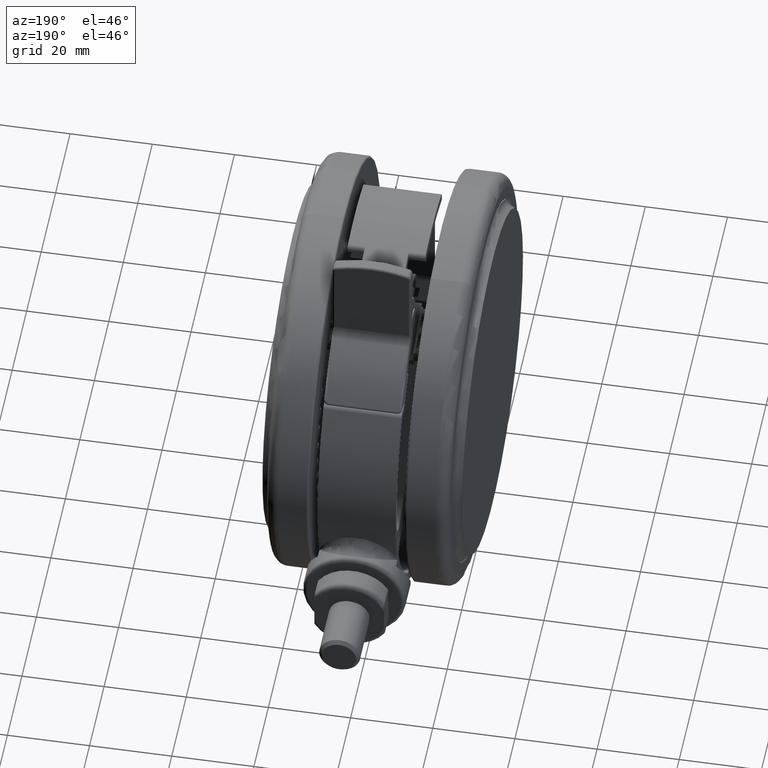
[diagram: clean part render]
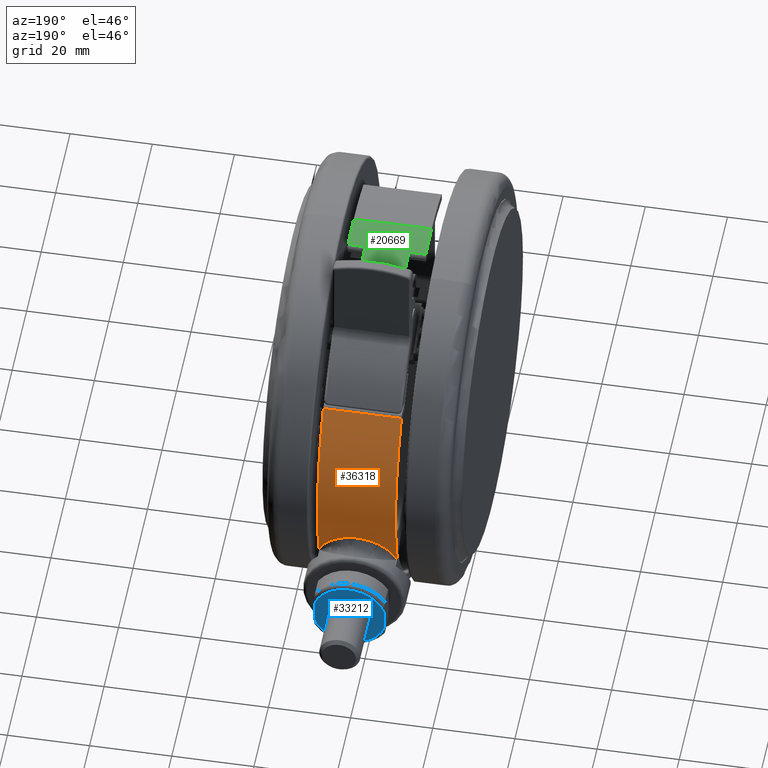
[diagram: same view with three faces highlighted in distinct colors, each labeled with its STEP entity id]
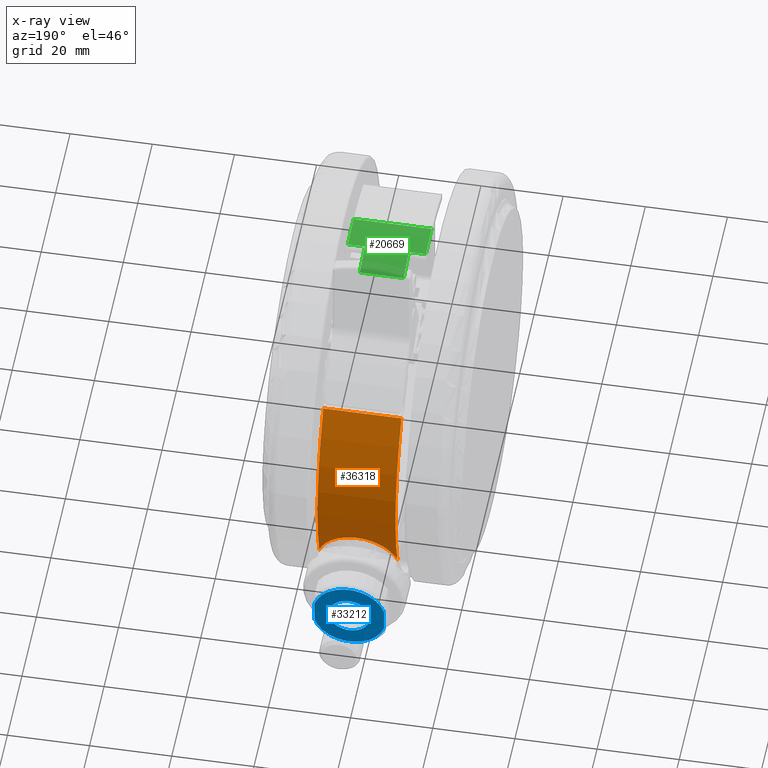
[diagram: x-ray of the same camera — body ghosted, the three highlighted faces saturated]
A machine part, auxiliary view with three faces highlighted in distinct colors.
The next image is the same camera in x-ray (body ghosted, the three faces saturated) — at least one of them is partly hidden behind the body in this view.
Their STEP definitions:

[orange] entity #36318 — the highlighted cylindrical surface (partial cylindrical patch) has radius 50 mm, axis along (-1, 0, -0).
#799 = AXIS2_PLACEMENT_3D ( 'NONE', #2840, #29259, #6620 ) ;
#1166 = CARTESIAN_POINT ( 'NONE',  ( -13.09172489581708400, -48.25564149939675200, -15.84150921377820100 ) ) ;
#1198 = CARTESIAN_POINT ( 'NONE',  ( -15.87596159536404800, -47.41259161259300500, -33.79999999999994700 ) ) ;
#1328 = CARTESIAN_POINT ( 'NONE',  ( -10.66898641664436700, -48.84856833163895800, -17.70733330539049500 ) ) ;
#1493 = CARTESIAN_POINT ( 'NONE',  ( -8.791999132687198700, -49.22094638092399800, -20.55996419657330400 ) ) ;
#1649 = CARTESIAN_POINT ( 'NONE',  ( -8.074873095910142200, -49.34365843718084200, -25.32162153377080900 ) ) ;
#1812 = CARTESIAN_POINT ( 'NONE',  ( -9.096688725208478500, -49.16558323610403400, -28.67923038830336000 ) ) ;
#1983 = CARTESIAN_POINT ( 'NONE',  ( -10.84037152324910400, -48.81214462405450400, -31.08660274415763100 ) ) ;
#2148 = CARTESIAN_POINT ( 'NONE',  ( -14.01472206169489400, -47.99599208364403300, -33.19900275548463500 ) ) ;
#2382 = CARTESIAN_POINT ( 'NONE',  ( -15.87596159536404400, -47.41259161259300500, -14.79999999999995100 ) ) ;
#2840 = CARTESIAN_POINT ( 'NONE',  ( -2.020031684480262600E-016, -5.159592291784555900E-015, -33.79999999999995500 ) ) ;
#4945 = CARTESIAN_POINT ( 'NONE',  ( -13.05232849073604100, -48.26631283782620600, -15.86314272779066100 ) ) ;
#5109 = CARTESIAN_POINT ( 'NONE',  ( -10.29062552948406600, -48.92995664342158300, -18.12523087480145600 ) ) ;
#5112 = FACE_OUTER_BOUND ( 'NONE', #28069, .T. ) ;
#5264 = CARTESIAN_POINT ( 'NONE',  ( -8.709136586245433500, -49.23567503686726400, -20.76019017789627000 ) ) ;
#5422 = CARTESIAN_POINT ( 'NONE',  ( -8.134827068306869100, -49.33381242785768700, -25.76430922666530100 ) ) ;
#5591 = CARTESIAN_POINT ( 'NONE',  ( -9.306094520549786300, -49.12634734241974100, -29.05917535852316600 ) ) ;
#5747 = CARTESIAN_POINT ( 'NONE',  ( -11.87402812652904600, -48.57010727266593600, -31.97116744350796200 ) ) ;
#5907 = CARTESIAN_POINT ( 'NONE',  ( -14.31836623910716500, -47.90600598987015200, -33.32128758053347200 ) ) ;
#6620 = DIRECTION ( 'NONE',  ( -1.000000000000000000, -1.067883571208054300E-016, 0.0000000000000000000 ) ) ;
#8556 = CARTESIAN_POINT ( 'NONE',  ( -15.36339979999792700, -47.58422136540161800, -14.91735612403010500 ) ) ;
#8726 = CARTESIAN_POINT ( 'NONE',  ( -12.57159945773513200, -48.39429549459020300, -16.14219996436783300 ) ) ;
#8888 = CARTESIAN_POINT ( 'NONE',  ( -9.856165726932186300, -49.01901162785025400, -18.68418919719844200 ) ) ;
#9054 = CIRCLE ( 'NONE', #10249, 50.00000000000000000 ) ;
#9056 = CARTESIAN_POINT ( 'NONE',  ( -8.478434126323676900, -49.27598911022435900, -21.38583015923825700 ) ) ;
#9218 = CARTESIAN_POINT ( 'NONE',  ( -8.243498477780312000, -49.31579789955633000, -26.35069853071141200 ) ) ;
#9280 = VERTEX_POINT ( 'NONE', #37005 ) ;
#9379 = CARTESIAN_POINT ( 'NONE',  ( -9.417766835107656200, -49.10506210540244600, -29.24740129616219200 ) ) ;
#9542 = CARTESIAN_POINT ( 'NONE',  ( -12.43580587061352300, -48.42896374635093800, -32.36073360932683600 ) ) ;
#9725 = CARTESIAN_POINT ( 'NONE',  ( -14.41188964882106100, -47.87795282646097700, -33.35726746754305300 ) ) ;
#10249 = AXIS2_PLACEMENT_3D ( 'NONE', #38766, #16112, #42549 ) ;
#10471 = AXIS2_PLACEMENT_3D ( 'NONE', #17684, #28880, #13857 ) ;
#11974 = EDGE_CURVE ( 'NONE', #43706, #14322, #48320, .T. ) ;
#12510 = CARTESIAN_POINT ( 'NONE',  ( -12.12731655015847200, -48.50711908405787700, -16.44202973907550500 ) ) ;
#12513 = B_SPLINE_CURVE_WITH_KNOTS ( 'NONE', 3,
 ( #31066, #8556, #38828, #16170, #42613, #19980, #46392, #23791, #1166, #27551, #4945, #31379, #8726, #35161, #12510, #38981, #16344, #42778, #20133, #46545, #23952, #1328, #27702, #5109, #31542, #8888, #35323, #12687, #39143, #16504, #42941, #20294, #46706, #24113, #1493, #27861, #5264, #31710, #9056, #35481, #12849, #39313, #16670, #43094, #20472, #46861, #24262, #1649, #28048, #5422, #31861, #9218, #35649, #13015, #39469, #16836, #43265, #20631, #47034, #24429, #1812, #28212, #5591, #32016, #9379, #35817, #13179, #39628, #17001, #43433, #20795, #47189, #24602, #1983, #28374, #5747, #32180, #9542, #35982, #13342, #39789, #17176, #43598, #20963, #47346, #24743, #2148, #28536, #5907, #32338, #9725, #36129, #13503, #39968 ),
 .UNSPECIFIED., .F., .F.,
 ( 4, 2, 1, 1, 1, 1, 2, 2, 2, 2, 2, 2, 2, 2, 2, 1, 2, 2, 2, 1, 2, 2, 2, 2, 2, 2, 2, 2, 2, 2, 1, 2, 2, 2, 1, 2, 2, 2, 1, 1, 2, 2, 2, 2, 1, 1, 1, 2, 2, 1, 1, 1, 2, 2, 4 ),
 ( 0.0000000000000000000, 0.06249999999999869500, 0.09374999999999812600, 0.1093749999999978800, 0.1171874999999978600, 0.1210937499999978500, 0.1230468749999976500, 0.1249999999999974500, 0.1562499999999964800, 0.1718749999999960600, 0.1874999999999956400, 0.2187499999999948100, 0.2343749999999943100, 0.2499999999999938100, 0.2812499999999927300, 0.2968749999999921200, 0.3046874999999919000, 0.3124999999999917300, 0.3437499999999902300, 0.3593749999999895100, 0.3671874999999891800, 0.3749999999999888400, 0.4062499999999879000, 0.4218749999999874500, 0.4374999999999870700, 0.4999999999999855700, 0.5312499999999846800, 0.5468749999999842300, 0.5624999999999837900, 0.5937499999999824600, 0.6093749999999820100, 0.6171874999999819000, 0.6249999999999817900, 0.6562499999999806800, 0.6718749999999799000, 0.6796874999999796800, 0.6874999999999795700, 0.7187499999999793500, 0.7343749999999792400, 0.7421874999999790200, 0.7460937499999791300, 0.7499999999999791300, 0.8124999999999809000, 0.8437499999999819000, 0.8593749999999825700, 0.8671874999999830100, 0.8710937499999830100, 0.8730468749999829000, 0.8749999999999826800, 0.9062499999999866800, 0.9218749999999885600, 0.9296874999999894500, 0.9335937499999899000, 0.9374999999999904500, 1.000000000000000000 ),
 .UNSPECIFIED. ) ;
#12687 = CARTESIAN_POINT ( 'NONE',  ( -9.614602913273921900, -49.06690294959698700, -19.03378811020713700 ) ) ;
#12849 = CARTESIAN_POINT ( 'NONE',  ( -8.317367950448746300, -49.30337327502358800, -21.95301410343915900 ) ) ;
#13015 = CARTESIAN_POINT ( 'NONE',  ( -8.435313317968594400, -49.28333610653702800, -27.06287991053413600 ) ) ;
#13179 = CARTESIAN_POINT ( 'NONE',  ( -9.765179823666827000, -49.03744879853281400, -29.78564829701928200 ) ) ;
#13342 = CARTESIAN_POINT ( 'NONE',  ( -12.81663646489256600, -48.32949947504603500, -32.59533621468482100 ) ) ;
#13503 = CARTESIAN_POINT ( 'NONE',  ( -15.38674463601175000, -47.57640441831223700, -33.68796985829437300 ) ) ;
#13857 = DIRECTION ( 'NONE',  ( 1.000000000000000000, 1.067883571208054300E-016, -3.469446951953614200E-017 ) ) ;
#14322 = VERTEX_POINT ( 'NONE', #35316 ) ;
#14809 = EDGE_CURVE ( 'NONE', #17517, #9280, #9054, .T. ) ;
#16112 = DIRECTION ( 'NONE',  ( 2.126349141558171200E-017, 1.779100357716780700E-016, 1.000000000000000000 ) ) ;
#16170 = CARTESIAN_POINT ( 'NONE',  ( -14.16000573487998800, -47.95367881952663700, -15.33314385121559000 ) ) ;
#16344 = CARTESIAN_POINT ( 'NONE',  ( -11.79931956868254000, -48.58794574202682500, -16.68480290272494000 ) ) ;
#16504 = CARTESIAN_POINT ( 'NONE',  ( -9.500102769116150400, -49.08920019950385000, -19.21099878885673100 ) ) ;
#16670 = CARTESIAN_POINT ( 'NONE',  ( -8.217351989443429300, -49.32013733572174600, -22.38203016977287900 ) ) ;
#16836 = CARTESIAN_POINT ( 'NONE',  ( -8.575472065782522100, -49.25913056431363700, -27.48266982937230600 ) ) ;
#17001 = CARTESIAN_POINT ( 'NONE',  ( -10.15166670236355500, -48.95874372978551000, -30.29616942673682800 ) ) ;
#17176 = CARTESIAN_POINT ( 'NONE',  ( -12.96667728393313900, -48.28939349864818100, -32.68129905221754700 ) ) ;
#17517 = VERTEX_POINT ( 'NONE', #2382 ) ;
#17684 = CARTESIAN_POINT ( 'NONE',  ( 2.020031684480262600E-016, -1.779301612122672900E-015, -14.79999999999995500 ) ) ;
#19980 = CARTESIAN_POINT ( 'NONE',  ( -13.42053089178971300, -48.16546859620024900, -15.66823825576164900 ) ) ;
#20133 = CARTESIAN_POINT ( 'NONE',  ( -11.26505823883820800, -48.71489798863203900, -17.12477910645675600 ) ) ;
#20294 = CARTESIAN_POINT ( 'NONE',  ( -9.166331775314319000, -49.15278041083139700, -19.77398912668925500 ) ) ;
#20472 = CARTESIAN_POINT ( 'NONE',  ( -8.019289329098302900, -49.35272027796948900, -23.69971331906350900 ) ) ;
#20631 = CARTESIAN_POINT ( 'NONE',  ( -8.653125941020364900, -49.24554935337641100, -27.69205665058567700 ) ) ;
#20795 = CARTESIAN_POINT ( 'NONE',  ( -10.38137605632384300, -48.91040386487623700, -30.56909694725592500 ) ) ;
#20963 = CARTESIAN_POINT ( 'NONE',  ( -13.01307561546850900, -48.27691037173780600, -32.70734133986923800 ) ) ;
#23791 = CARTESIAN_POINT ( 'NONE',  ( -13.13245420760963700, -48.24458555074430400, -15.81930125893349600 ) ) ;
#23952 = CARTESIAN_POINT ( 'NONE',  ( -10.86330823924258800, -48.80572131736755600, -17.50788577239621100 ) ) ;
#24032 = CYLINDRICAL_SURFACE ( 'NONE', #10471, 50.00000000000000000 ) ;
#24113 = CARTESIAN_POINT ( 'NONE',  ( -8.878357319872156600, -49.20549734907511700, -20.35987061161574700 ) ) ;
#24262 = CARTESIAN_POINT ( 'NONE',  ( -8.032638928675496000, -49.35055750204253400, -24.87907196957118900 ) ) ;
#24429 = CARTESIAN_POINT ( 'NONE',  ( -8.902736459134363400, -49.20120492810745800, -28.29206387379294800 ) ) ;
#24602 = CARTESIAN_POINT ( 'NONE',  ( -10.45287079307923700, -48.89517395010644000, -30.65091773856324100 ) ) ;
#24743 = CARTESIAN_POINT ( 'NONE',  ( -13.59759180384085500, -48.11664289550083900, -33.01559382180125400 ) ) ;
#27502 = ORIENTED_EDGE ( 'NONE', *, *, #29290, .T. ) ;
#27551 = CARTESIAN_POINT ( 'NONE',  ( -13.06461253536863500, -48.26298888969421300, -15.85637428137181400 ) ) ;
#27702 = CARTESIAN_POINT ( 'NONE',  ( -10.57514200936372400, -48.86896539942897300, -17.80770550592231800 ) ) ;
#27844 = VECTOR ( 'NONE', #32065, 1000.000000000000000 ) ;
#27861 = CARTESIAN_POINT ( 'NONE',  ( -8.735911521282890400, -49.23093195619278400, -20.69409834397815500 ) ) ;
#28048 = CARTESIAN_POINT ( 'NONE',  ( -8.092495863851905100, -49.34077391764179800, -25.46916568090965100 ) ) ;
#28069 = EDGE_LOOP ( 'NONE', ( #34330, #27502, #28604, #37730 ) ) ;
#28212 = CARTESIAN_POINT ( 'NONE',  ( -9.198084914400132200, -49.14676332588585700, -28.87075034718983700 ) ) ;
#28374 = CARTESIAN_POINT ( 'NONE',  ( -11.23578998477968800, -48.72318217367824600, -31.46151509744029400 ) ) ;
#28536 = CARTESIAN_POINT ( 'NONE',  ( -14.22675536490989900, -47.93335488715442200, -33.28539844901543900 ) ) ;
#28604 = ORIENTED_EDGE ( 'NONE', *, *, #14809, .F. ) ;
#28880 = DIRECTION ( 'NONE',  ( -2.126349141558171200E-017, -1.779100357716780700E-016, -1.000000000000000000 ) ) ;
#29259 = DIRECTION ( 'NONE',  ( 2.126349141558171200E-017, 1.779100357716780700E-016, 1.000000000000000000 ) ) ;
#29290 = EDGE_CURVE ( 'NONE', #14322, #9280, #40312, .T. ) ;
#31066 = CARTESIAN_POINT ( 'NONE',  ( -15.87596159536404400, -47.41259161259300500, -14.79999999999995100 ) ) ;
#31379 = CARTESIAN_POINT ( 'NONE',  ( -12.80128056670911400, -48.33411959508936200, -16.00230927903934800 ) ) ;
#31542 = CARTESIAN_POINT ( 'NONE',  ( -10.11085112346546200, -48.96734324824463900, -18.34435179762049000 ) ) ;
#31710 = CARTESIAN_POINT ( 'NONE',  ( -8.573710676462658500, -49.25955326490765900, -21.10593992607850600 ) ) ;
#31861 = CARTESIAN_POINT ( 'NONE',  ( -8.159926931686150900, -49.32967048212775300, -25.91395420910108500 ) ) ;
#32016 = CARTESIAN_POINT ( 'NONE',  ( -9.379568505365998700, -49.11237209794109800, -29.18410426662248000 ) ) ;
#32065 = DIRECTION ( 'NONE',  ( 2.126349141558171200E-017, 1.779100357716780700E-016, 1.000000000000000000 ) ) ;
#32180 = CARTESIAN_POINT ( 'NONE',  ( -12.09428962366213300, -48.51580512870843600, -32.13226552822112600 ) ) ;
#32338 = CARTESIAN_POINT ( 'NONE',  ( -14.37960405669483200, -47.88766029815366200, -33.34496086948303900 ) ) ;
#34330 = ORIENTED_EDGE ( 'NONE', *, *, #11974, .T. ) ;
#35161 = CARTESIAN_POINT ( 'NONE',  ( -12.23713080903154800, -48.47954070428588100, -16.36540159506102700 ) ) ;
#35316 = CARTESIAN_POINT ( 'NONE',  ( 27.31958762886595700, -41.87648662183485000, -33.79999999999994700 ) ) ;
#35323 = CARTESIAN_POINT ( 'NONE',  ( -9.732566719437031100, -49.04374208781965200, -18.85689690082477900 ) ) ;
#35481 = CARTESIAN_POINT ( 'NONE',  ( -8.355177393604634500, -49.29698517889038800, -21.81060116089880900 ) ) ;
#35649 = CARTESIAN_POINT ( 'NONE',  ( -8.312355723238402700, -49.30427625043405000, -26.63792995606967700 ) ) ;
#35817 = CARTESIAN_POINT ( 'NONE',  ( -9.605146744520169500, -49.06897655943481600, -29.55040244303826900 ) ) ;
#35982 = CARTESIAN_POINT ( 'NONE',  ( -12.60934466368321000, -48.38419553531554800, -32.47167288838864600 ) ) ;
#36129 = CARTESIAN_POINT ( 'NONE',  ( -14.90825335206542100, -47.72821061239162100, -33.54405484507405800 ) ) ;
#36318 = ADVANCED_FACE ( 'NONE', ( #5112 ), #24032, .T. ) ;
#37005 = CARTESIAN_POINT ( 'NONE',  ( 27.31958762886595700, -41.87648662183485000, -14.79999999999995100 ) ) ;
#37730 = ORIENTED_EDGE ( 'NONE', *, *, #48860, .T. ) ;
#38766 = CARTESIAN_POINT ( 'NONE',  ( 2.020031684480262600E-016, -1.779301612122672900E-015, -14.79999999999995500 ) ) ;
#38828 = CARTESIAN_POINT ( 'NONE',  ( -14.87000690518328500, -47.74020521104201700, -15.06531160233777900 ) ) ;
#38981 = CARTESIAN_POINT ( 'NONE',  ( -11.91106185796878600, -48.56067353279153300, -16.59974122800459600 ) ) ;
#39143 = CARTESIAN_POINT ( 'NONE',  ( -9.537214629438711500, -49.08200374227934800, -19.15264525107448900 ) ) ;
#39313 = CARTESIAN_POINT ( 'NONE',  ( -8.248309205127165800, -49.31497360007483600, -22.23948520582682400 ) ) ;
#39469 = CARTESIAN_POINT ( 'NONE',  ( -8.501709769612183700, -49.27195014164438200, -27.27388059187315200 ) ) ;
#39628 = CARTESIAN_POINT ( 'NONE',  ( -10.02032244934062700, -48.98571902529922500, -30.12778448271095400 ) ) ;
#39789 = CARTESIAN_POINT ( 'NONE',  ( -12.92148500888368200, -48.30152091922038000, -32.65572641968056900 ) ) ;
#39968 = CARTESIAN_POINT ( 'NONE',  ( -15.87596159536404800, -47.41259161259300500, -33.79999999999994700 ) ) ;
#40312 = LINE ( 'NONE', #43313, #27844 ) ;
#42549 = DIRECTION ( 'NONE',  ( -1.000000000000000000, -1.067883571208054300E-016, 3.469446951953614200E-017 ) ) ;
#42613 = CARTESIAN_POINT ( 'NONE',  ( -13.81252283401269500, -48.05528693359809700, -15.47853473350856000 ) ) ;
#42778 = CARTESIAN_POINT ( 'NONE',  ( -11.47433446817963300, -48.66610014546562700, -16.94337545923290000 ) ) ;
#42941 = CARTESIAN_POINT ( 'NONE',  ( -9.308132508066428600, -49.12619597347290300, -19.52048931387566500 ) ) ;
#43094 = CARTESIAN_POINT ( 'NONE',  ( -8.076061289403698500, -49.34359494985753300, -23.11399999178327000 ) ) ;
#43265 = CARTESIAN_POINT ( 'NONE',  ( -8.626282406765575700, -49.25025803934271100, -27.62137122240734400 ) ) ;
#43313 = CARTESIAN_POINT ( 'NONE',  ( 27.31958762886600300, -41.87648662183490700, -14.79999999999995100 ) ) ;
#43433 = CARTESIAN_POINT ( 'NONE',  ( -10.31147876870526400, -48.92522188995408800, -30.48792301766544500 ) ) ;
#43598 = CARTESIAN_POINT ( 'NONE',  ( -12.99686256038361200, -48.28127802616094000, -32.69827883304446200 ) ) ;
#43706 = VERTEX_POINT ( 'NONE', #1198 ) ;
#46392 = CARTESIAN_POINT ( 'NONE',  ( -13.22791425003091500, -48.21854316301063600, -15.76811022344935500 ) ) ;
#46545 = CARTESIAN_POINT ( 'NONE',  ( -10.96234566935812700, -48.78358005740575000, -17.41041749162037200 ) ) ;
#46706 = CARTESIAN_POINT ( 'NONE',  ( -8.971389277907214000, -49.18860172343679000, -20.16309993510730400 ) ) ;
#46861 = CARTESIAN_POINT ( 'NONE',  ( -8.018662412042557400, -49.35282213983835900, -24.58414942972734700 ) ) ;
#47034 = CARTESIAN_POINT ( 'NONE',  ( -8.785222561514233400, -49.22226507604543900, -28.02845073513601500 ) ) ;
#47189 = CARTESIAN_POINT ( 'NONE',  ( -10.42828644374297300, -48.90042348380389100, -30.62298930458125300 ) ) ;
#47346 = CARTESIAN_POINT ( 'NONE',  ( -13.25205874799575900, -48.21241764011047300, -32.84018465586389400 ) ) ;
#48320 = CIRCLE ( 'NONE', #799, 50.00000000000000000 ) ;
#48860 = EDGE_CURVE ( 'NONE', #17517, #43706, #12513, .T. ) ;

[blue] entity #33212 — the highlighted planar face has unit normal (0, 1, 0).
#197 = VERTEX_POINT ( 'NONE', #23413 ) ;
#264 = AXIS2_PLACEMENT_3D ( 'NONE', #17805, #44219, #21596 ) ;
#1071 = CARTESIAN_POINT ( 'NONE',  ( -23.99999999999999300, -59.99999999999999300, -24.29999999999995500 ) ) ;
#2365 = ORIENTED_EDGE ( 'NONE', *, *, #15568, .T. ) ;
#3123 = VERTEX_POINT ( 'NONE', #9820 ) ;
#3424 = DIRECTION ( 'NONE',  ( 0.0000000000000000000, 0.0000000000000000000, 1.000000000000000000 ) ) ;
#4069 = CARTESIAN_POINT ( 'NONE',  ( -26.63818119165457400, -59.99999999999999300, -15.79999999999995300 ) ) ;
#4858 = DIRECTION ( 'NONE',  ( 0.0000000000000000000, 0.0000000000000000000, 1.000000000000000000 ) ) ;
#5241 = AXIS2_PLACEMENT_3D ( 'NONE', #10032, #36472, #13834 ) ;
#5478 = CARTESIAN_POINT ( 'NONE',  ( -21.36181880834540400, -59.99999999999999300, -32.79999999999995500 ) ) ;
#5739 = CIRCLE ( 'NONE', #264, 5.000000000000000900 ) ;
#7088 = VERTEX_POINT ( 'NONE', #37527 ) ;
#8462 = EDGE_CURVE ( 'NONE', #42979, #3123, #13667, .T. ) ;
#8601 = ORIENTED_EDGE ( 'NONE', *, *, #48927, .F. ) ;
#9820 = CARTESIAN_POINT ( 'NONE',  ( -26.63818119165457100, -60.00000000000000000, -32.79999999999995500 ) ) ;
#10032 = CARTESIAN_POINT ( 'NONE',  ( -23.99999999999999300, -59.99999999999999300, -24.29999999999995500 ) ) ;
#12109 = EDGE_LOOP ( 'NONE', ( #15423, #8601 ) ) ;
#13667 = CIRCLE ( 'NONE', #38656, 8.900000000000000400 ) ;
#13834 = DIRECTION ( 'NONE',  ( 0.0000000000000000000, 0.0000000000000000000, 1.000000000000000000 ) ) ;
#15423 = ORIENTED_EDGE ( 'NONE', *, *, #42740, .F. ) ;
#15477 = CARTESIAN_POINT ( 'NONE',  ( -18.73217312357362000, -59.99999999999999300, -15.79999999999995300 ) ) ;
#15568 = EDGE_CURVE ( 'NONE', #3123, #48387, #38566, .T. ) ;
#17805 = CARTESIAN_POINT ( 'NONE',  ( -23.99999999999999300, -59.99999999999999300, -24.29999999999995500 ) ) ;
#19286 = DIRECTION ( 'NONE',  ( -1.000000000000000000, -2.360897160001560300E-016, -8.975881104693386200E-017 ) ) ;
#21313 = DIRECTION ( 'NONE',  ( 2.360897160001558300E-016, -1.000000000000000000, 1.779100357716778700E-016 ) ) ;
#21596 = DIRECTION ( 'NONE',  ( 0.0000000000000000000, 0.0000000000000000000, 1.000000000000000000 ) ) ;
#23413 = CARTESIAN_POINT ( 'NONE',  ( -23.99999999999999300, -59.99999999999999300, -19.29999999999995100 ) ) ;
#24463 = CIRCLE ( 'NONE', #27606, 8.900000000000000400 ) ;
#24590 = CIRCLE ( 'NONE', #5241, 5.000000000000000900 ) ;
#24607 = LINE ( 'NONE', #15477, #44678 ) ;
#24937 = CARTESIAN_POINT ( 'NONE',  ( -23.99999999999999300, -59.99999999999999300, -24.29999999999995500 ) ) ;
#26022 = DIRECTION ( 'NONE',  ( 2.360897160001558300E-016, -1.000000000000000000, 6.688773330916214400E-017 ) ) ;
#27452 = DIRECTION ( 'NONE',  ( 2.360897160001558300E-016, -1.000000000000000000, 6.688773330916214400E-017 ) ) ;
#27476 = CARTESIAN_POINT ( 'NONE',  ( -18.73217312357362000, -59.99999999999999300, -32.79999999999995500 ) ) ;
#27606 = AXIS2_PLACEMENT_3D ( 'NONE', #48643, #26022, #3424 ) ;
#28491 = VECTOR ( 'NONE', #38920, 1000.000000000000000 ) ;
#28873 = ORIENTED_EDGE ( 'NONE', *, *, #37934, .T. ) ;
#29280 = ORIENTED_EDGE ( 'NONE', *, *, #36562, .T. ) ;
#30218 = FACE_BOUND ( 'NONE', #12109, .T. ) ;
#33212 = ADVANCED_FACE ( 'NONE', ( #30218, #40289 ), #40149, .T. ) ;
#36472 = DIRECTION ( 'NONE',  ( 2.360897160001558300E-016, -1.000000000000000000, 6.688773330916214400E-017 ) ) ;
#36562 = EDGE_CURVE ( 'NONE', #7088, #42979, #24607, .T. ) ;
#36859 = VERTEX_POINT ( 'NONE', #43726 ) ;
#37527 = CARTESIAN_POINT ( 'NONE',  ( -21.36181880834540800, -59.99999999999999300, -15.79999999999995300 ) ) ;
#37934 = EDGE_CURVE ( 'NONE', #48387, #7088, #24463, .T. ) ;
#38566 = LINE ( 'NONE', #27476, #28491 ) ;
#38656 = AXIS2_PLACEMENT_3D ( 'NONE', #1071, #27452, #4858 ) ;
#38920 = DIRECTION ( 'NONE',  ( 1.000000000000000000, 2.360897160001560300E-016, 8.975881104693386200E-017 ) ) ;
#39718 = EDGE_LOOP ( 'NONE', ( #2365, #28873, #29280, #42798 ) ) ;
#40149 = PLANE ( 'NONE',  #46441 ) ;
#40289 = FACE_OUTER_BOUND ( 'NONE', #39718, .T. ) ;
#42740 = EDGE_CURVE ( 'NONE', #36859, #197, #5739, .T. ) ;
#42798 = ORIENTED_EDGE ( 'NONE', *, *, #8462, .T. ) ;
#42979 = VERTEX_POINT ( 'NONE', #4069 ) ;
#43726 = CARTESIAN_POINT ( 'NONE',  ( -23.99999999999999300, -59.99999999999999300, -29.29999999999995500 ) ) ;
#44219 = DIRECTION ( 'NONE',  ( 2.360897160001558300E-016, -1.000000000000000000, 6.688773330916214400E-017 ) ) ;
#44678 = VECTOR ( 'NONE', #19286, 1000.000000000000000 ) ;
#46441 = AXIS2_PLACEMENT_3D ( 'NONE', #24937, #21313, #47705 ) ;
#47705 = DIRECTION ( 'NONE',  ( -8.975881104693388600E-017, 1.779100357716778500E-016, 1.000000000000000000 ) ) ;
#48387 = VERTEX_POINT ( 'NONE', #5478 ) ;
#48643 = CARTESIAN_POINT ( 'NONE',  ( -23.99999999999999300, -59.99999999999999300, -24.29999999999995500 ) ) ;
#48927 = EDGE_CURVE ( 'NONE', #197, #36859, #24590, .T. ) ;

[green] entity #20669 — the highlighted cylindrical surface (partial cylindrical patch) has radius 50 mm, axis along (-1, 0, -0).
#697 = CARTESIAN_POINT ( 'NONE',  ( 47.66407608782070300, -15.10416666666664700, -14.79999999999995500 ) ) ;
#1358 = CARTESIAN_POINT ( 'NONE',  ( 50.00000000000000000, 1.869970904086657800E-015, -14.79999999999995600 ) ) ;
#1447 = AXIS2_PLACEMENT_3D ( 'NONE', #39569, #16939, #43367 ) ;
#1461 = AXIS2_PLACEMENT_3D ( 'NONE', #35619, #12988, #39442 ) ;
#1977 = CIRCLE ( 'NONE', #18322, 50.00000000000000000 ) ;
#1978 = DIRECTION ( 'NONE',  ( -2.126349141558171200E-017, -1.779100357716780700E-016, -1.000000000000000000 ) ) ;
#2223 = LINE ( 'NONE', #24595, #41227 ) ;
#2536 = DIRECTION ( 'NONE',  ( 2.126349141558171200E-017, 1.779100357716780700E-016, 1.000000000000000000 ) ) ;
#3427 = EDGE_CURVE ( 'NONE', #34864, #28016, #11718, .T. ) ;
#3505 = VERTEX_POINT ( 'NONE', #1358 ) ;
#4099 = EDGE_CURVE ( 'NONE', #3505, #5634, #2223, .T. ) ;
#4117 = CARTESIAN_POINT ( 'NONE',  ( 47.66407608782059700, -15.10416666666664700, -18.94999999999995300 ) ) ;
#4675 = CARTESIAN_POINT ( 'NONE',  ( 49.36039483712109900, -7.971914545672576400, -14.79999999999995600 ) ) ;
#4701 = EDGE_CURVE ( 'NONE', #34864, #39631, #26344, .T. ) ;
#4714 = DIRECTION ( 'NONE',  ( 1.000000000000000000, 1.067883571208054300E-016, -3.469446951953614200E-017 ) ) ;
#4843 = VECTOR ( 'NONE', #19522, 1000.000000000000000 ) ;
#5634 = VERTEX_POINT ( 'NONE', #19477 ) ;
#5859 = CIRCLE ( 'NONE', #1461, 50.00000000000000000 ) ;
#6242 = ORIENTED_EDGE ( 'NONE', *, *, #17521, .T. ) ;
#8276 = CARTESIAN_POINT ( 'NONE',  ( 47.66407608782059700, -15.10416666666665000, -29.64999999999995600 ) ) ;
#11718 = LINE ( 'NONE', #697, #40695 ) ;
#12988 = DIRECTION ( 'NONE',  ( 2.126349141558171200E-017, 1.779100357716780700E-016, 1.000000000000000000 ) ) ;
#16074 = LINE ( 'NONE', #4675, #4843 ) ;
#16738 = LINE ( 'NONE', #25483, #38021 ) ;
#16939 = DIRECTION ( 'NONE',  ( 2.126349141558171200E-017, 1.779100357716780700E-016, 1.000000000000000000 ) ) ;
#17521 = EDGE_CURVE ( 'NONE', #28016, #38600, #1977, .T. ) ;
#17616 = FACE_OUTER_BOUND ( 'NONE', #43607, .T. ) ;
#18078 = DIRECTION ( 'NONE',  ( -2.126349141558171200E-017, -1.779100357716780700E-016, -1.000000000000000000 ) ) ;
#18322 = AXIS2_PLACEMENT_3D ( 'NONE', #25150, #2536, #28942 ) ;
#18456 = AXIS2_PLACEMENT_3D ( 'NONE', #20283, #46694, #24098 ) ;
#18855 = ORIENTED_EDGE ( 'NONE', *, *, #29132, .T. ) ;
#19477 = CARTESIAN_POINT ( 'NONE',  ( 50.00000000000000000, 1.869970904086657800E-015, -33.79999999999995500 ) ) ;
#19522 = DIRECTION ( 'NONE',  ( -2.126349141558171200E-017, -1.779100357716780700E-016, -1.000000000000000000 ) ) ;
#20283 = CARTESIAN_POINT ( 'NONE',  ( -2.020031684480262600E-016, -5.159592291784555900E-015, -33.79999999999995500 ) ) ;
#20530 = ORIENTED_EDGE ( 'NONE', *, *, #37609, .T. ) ;
#20669 = ADVANCED_FACE ( 'NONE', ( #17616 ), #46538, .T. ) ;
#21259 = CARTESIAN_POINT ( 'NONE',  ( 49.36039483712109900, -7.971914545672580000, -33.79999999999995500 ) ) ;
#21931 = CARTESIAN_POINT ( 'NONE',  ( 49.36039483712109900, -7.971914545672566600, -18.94999999999995300 ) ) ;
#23556 = CARTESIAN_POINT ( 'NONE',  ( 2.020031684480262600E-016, -1.779301612122672900E-015, -14.79999999999995500 ) ) ;
#23950 = EDGE_CURVE ( 'NONE', #46846, #3505, #5859, .T. ) ;
#24098 = DIRECTION ( 'NONE',  ( -1.000000000000000000, -1.067883571208054300E-016, 0.0000000000000000000 ) ) ;
#24595 = CARTESIAN_POINT ( 'NONE',  ( 50.00000000000000000, 3.560116243917599100E-015, -14.79999999999995600 ) ) ;
#25150 = CARTESIAN_POINT ( 'NONE',  ( -1.137596790733621500E-016, -4.421265643332091800E-015, -29.64999999999995600 ) ) ;
#25337 = ORIENTED_EDGE ( 'NONE', *, *, #27675, .T. ) ;
#25483 = CARTESIAN_POINT ( 'NONE',  ( 49.36039483712109900, -7.971914545672576400, -14.79999999999995600 ) ) ;
#26344 = CIRCLE ( 'NONE', #1447, 50.00000000000000000 ) ;
#27079 = DIRECTION ( 'NONE',  ( -2.126349141558171200E-017, -1.779100357716780700E-016, -1.000000000000000000 ) ) ;
#27301 = DIRECTION ( 'NONE',  ( -2.126349141558171200E-017, -1.779100357716780700E-016, -1.000000000000000000 ) ) ;
#27675 = EDGE_CURVE ( 'NONE', #46846, #39631, #16738, .T. ) ;
#28016 = VERTEX_POINT ( 'NONE', #8276 ) ;
#28546 = ORIENTED_EDGE ( 'NONE', *, *, #4099, .F. ) ;
#28606 = CIRCLE ( 'NONE', #18456, 50.00000000000000000 ) ;
#28942 = DIRECTION ( 'NONE',  ( -1.000000000000000000, -1.067883571208054500E-016, 0.0000000000000000000 ) ) ;
#29132 = EDGE_CURVE ( 'NONE', #38600, #33814, #16074, .T. ) ;
#29820 = AXIS2_PLACEMENT_3D ( 'NONE', #23556, #27301, #4714 ) ;
#30358 = CARTESIAN_POINT ( 'NONE',  ( 49.36039483712109900, -7.971914545672576400, -14.79999999999995600 ) ) ;
#33814 = VERTEX_POINT ( 'NONE', #21259 ) ;
#34864 = VERTEX_POINT ( 'NONE', #4117 ) ;
#35619 = CARTESIAN_POINT ( 'NONE',  ( 2.020031684480262600E-016, -1.779301612122672900E-015, -14.79999999999995500 ) ) ;
#37448 = ORIENTED_EDGE ( 'NONE', *, *, #3427, .T. ) ;
#37609 = EDGE_CURVE ( 'NONE', #33814, #5634, #28606, .T. ) ;
#38021 = VECTOR ( 'NONE', #18078, 1000.000000000000000 ) ;
#38199 = ORIENTED_EDGE ( 'NONE', *, *, #4701, .F. ) ;
#38600 = VERTEX_POINT ( 'NONE', #45619 ) ;
#39442 = DIRECTION ( 'NONE',  ( -1.000000000000000000, -1.067883571208054300E-016, 3.469446951953614200E-017 ) ) ;
#39569 = CARTESIAN_POINT ( 'NONE',  ( 1.137596790733621500E-016, -2.517628260575136600E-015, -18.94999999999995300 ) ) ;
#39631 = VERTEX_POINT ( 'NONE', #21931 ) ;
#40695 = VECTOR ( 'NONE', #27079, 1000.000000000000000 ) ;
#41227 = VECTOR ( 'NONE', #1978, 1000.000000000000000 ) ;
#43367 = DIRECTION ( 'NONE',  ( -1.000000000000000000, -1.067883571208054500E-016, 0.0000000000000000000 ) ) ;
#43607 = EDGE_LOOP ( 'NONE', ( #28546, #47726, #25337, #38199, #37448, #6242, #18855, #20530 ) ) ;
#45619 = CARTESIAN_POINT ( 'NONE',  ( 49.36039483712109900, -7.971914545672569300, -29.64999999999995600 ) ) ;
#46538 = CYLINDRICAL_SURFACE ( 'NONE', #29820, 50.00000000000000000 ) ;
#46694 = DIRECTION ( 'NONE',  ( 2.126349141558171200E-017, 1.779100357716780700E-016, 1.000000000000000000 ) ) ;
#46846 = VERTEX_POINT ( 'NONE', #30358 ) ;
#47726 = ORIENTED_EDGE ( 'NONE', *, *, #23950, .F. ) ;